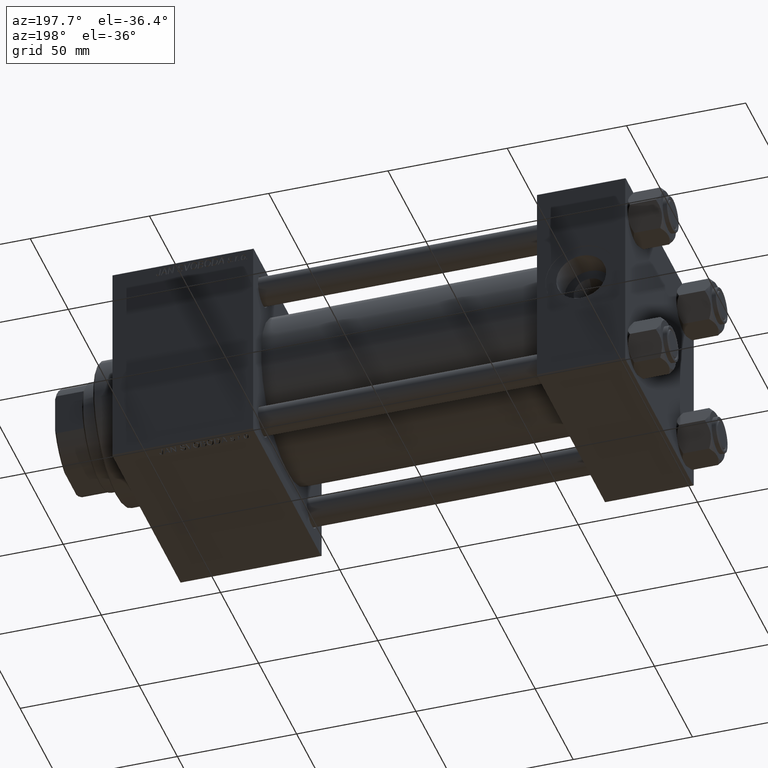
[diagram: clean part render]
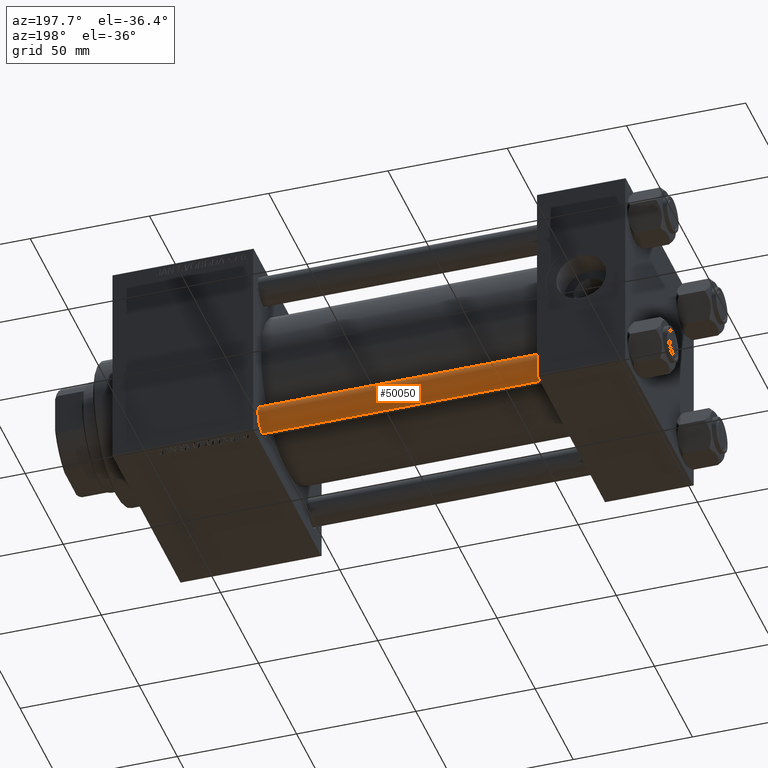
[diagram: same view with one face highlighted and labeled with its STEP entity id]
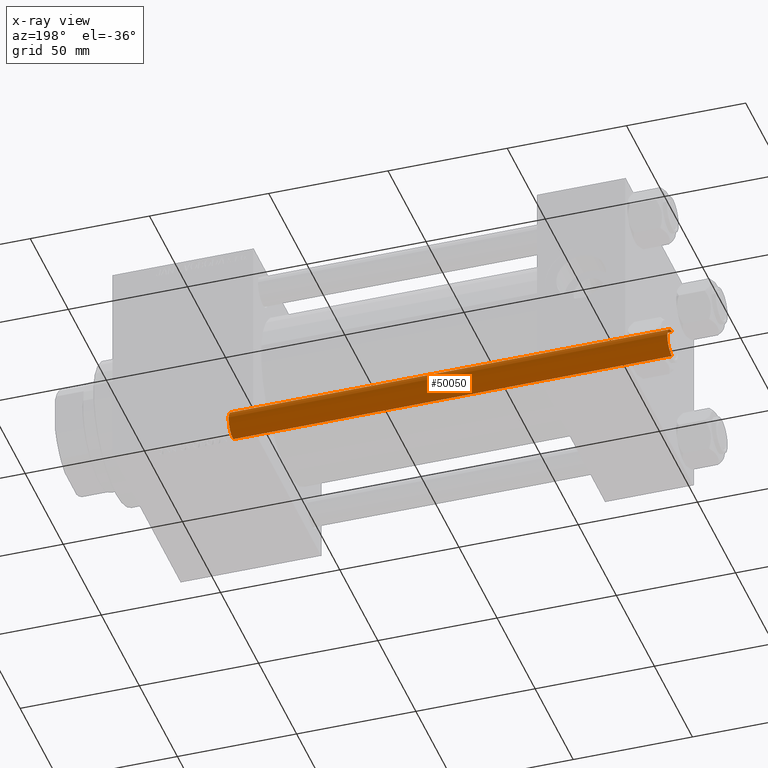
[diagram: x-ray of the same camera — body ghosted, the highlighted face saturated]
A machine part, auxiliary view. The second image highlights one B-rep face of the part: STEP entity #50050.
The next image is the same camera in x-ray: the body ghosted, the highlighted face saturated — about 0% of this face is hidden behind the body in this view.
In plain terms, the highlighted cylindrical surface (edge-blend (fillet) strip) has radius 6 mm, axis along (1, -0, -0).
Its self-contained STEP definition (entity closure, byte-faithful):
#5016 = EDGE_CURVE ( 'NONE', #16803, #35073, #14449, .T. ) ;
#5230 = VERTEX_POINT ( 'NONE', #9359 ) ;
#8194 = DIRECTION ( 'NONE',  ( -0.000000000000000000, -0.000000000000000000, 1.000000000000000000 ) ) ;
#9359 = CARTESIAN_POINT ( 'NONE',  ( 6.000000000000000888, 7.347880794884120722E-16, 0.5000000000000281997 ) ) ;
#9364 = EDGE_CURVE ( 'NONE', #16803, #16613, #21099, .T. ) ;
#12448 = CARTESIAN_POINT ( 'NONE',  ( -6.000000000000000888, 0.000000000000000000, 184.5000000000000000 ) ) ;
#14449 = LINE ( 'NONE', #25110, #17792 ) ;
#16613 = VERTEX_POINT ( 'NONE', #37818 ) ;
#16803 = VERTEX_POINT ( 'NONE', #12448 ) ;
#17638 = VECTOR ( 'NONE', #48798, 1000.000000000000000 ) ;
#17792 = VECTOR ( 'NONE', #41350, 1000.000000000000000 ) ;
#17866 = LINE ( 'NONE', #33343, #17638 ) ;
#18342 = EDGE_LOOP ( 'NONE', ( #21719, #24097, #41851, #39992 ) ) ;
#19718 = DIRECTION ( 'NONE',  ( 1.000000000000000000, 0.000000000000000000, 0.000000000000000000 ) ) ;
#19966 = CARTESIAN_POINT ( 'NONE',  ( 0.000000000000000000, 0.000000000000000000, 184.5000000000000000 ) ) ;
#21099 = CIRCLE ( 'NONE', #33327, 6.000000000000000888 ) ;
#21315 = FACE_OUTER_BOUND ( 'NONE', #18342, .T. ) ;
#21719 = ORIENTED_EDGE ( 'NONE', *, *, #9364, .T. ) ;
#24097 = ORIENTED_EDGE ( 'NONE', *, *, #33094, .T. ) ;
#24627 = EDGE_CURVE ( 'NONE', #5230, #35073, #44240, .T. ) ;
#25110 = CARTESIAN_POINT ( 'NONE',  ( -6.000000000000000888, 0.000000000000000000, 185.0000000000000000 ) ) ;
#29148 = DIRECTION ( 'NONE',  ( -0.000000000000000000, -0.000000000000000000, -1.000000000000000000 ) ) ;
#33094 = EDGE_CURVE ( 'NONE', #16613, #5230, #17866, .T. ) ;
#33327 = AXIS2_PLACEMENT_3D ( 'NONE', #19966, #35702, #19718 ) ;
#33343 = CARTESIAN_POINT ( 'NONE',  ( 6.000000000000000888, 7.347880794884120722E-16, 185.0000000000000000 ) ) ;
#35073 = VERTEX_POINT ( 'NONE', #41759 ) ;
#35702 = DIRECTION ( 'NONE',  ( 0.000000000000000000, 0.000000000000000000, -1.000000000000000000 ) ) ;
#35830 = DIRECTION ( 'NONE',  ( 1.000000000000000000, 0.000000000000000000, 0.000000000000000000 ) ) ;
#36781 = CARTESIAN_POINT ( 'NONE',  ( 0.000000000000000000, 0.000000000000000000, 185.0000000000000000 ) ) ;
#37818 = CARTESIAN_POINT ( 'NONE',  ( 6.000000000000000888, 7.347880794884120722E-16, 184.5000000000000000 ) ) ;
#39992 = ORIENTED_EDGE ( 'NONE', *, *, #5016, .F. ) ;
#41350 = DIRECTION ( 'NONE',  ( -0.000000000000000000, -0.000000000000000000, -1.000000000000000000 ) ) ;
#41759 = CARTESIAN_POINT ( 'NONE',  ( -6.000000000000000888, 0.000000000000000000, 0.5000000000000281997 ) ) ;
#41851 = ORIENTED_EDGE ( 'NONE', *, *, #24627, .T. ) ;
#44240 = CIRCLE ( 'NONE', #46648, 6.000000000000000888 ) ;
#44395 = DIRECTION ( 'NONE',  ( -1.000000000000000000, 0.000000000000000000, 0.000000000000000000 ) ) ;
#45979 = CARTESIAN_POINT ( 'NONE',  ( 0.000000000000000000, 0.000000000000000000, 0.5000000000000281997 ) ) ;
#46648 = AXIS2_PLACEMENT_3D ( 'NONE', #45979, #8194, #35830 ) ;
#48670 = CYLINDRICAL_SURFACE ( 'NONE', #49688, 6.000000000000000888 ) ;
#48798 = DIRECTION ( 'NONE',  ( -0.000000000000000000, -0.000000000000000000, -1.000000000000000000 ) ) ;
#49688 = AXIS2_PLACEMENT_3D ( 'NONE', #36781, #29148, #44395 ) ;
#50050 = ADVANCED_FACE ( 'NONE', ( #21315 ), #48670, .T. ) ;